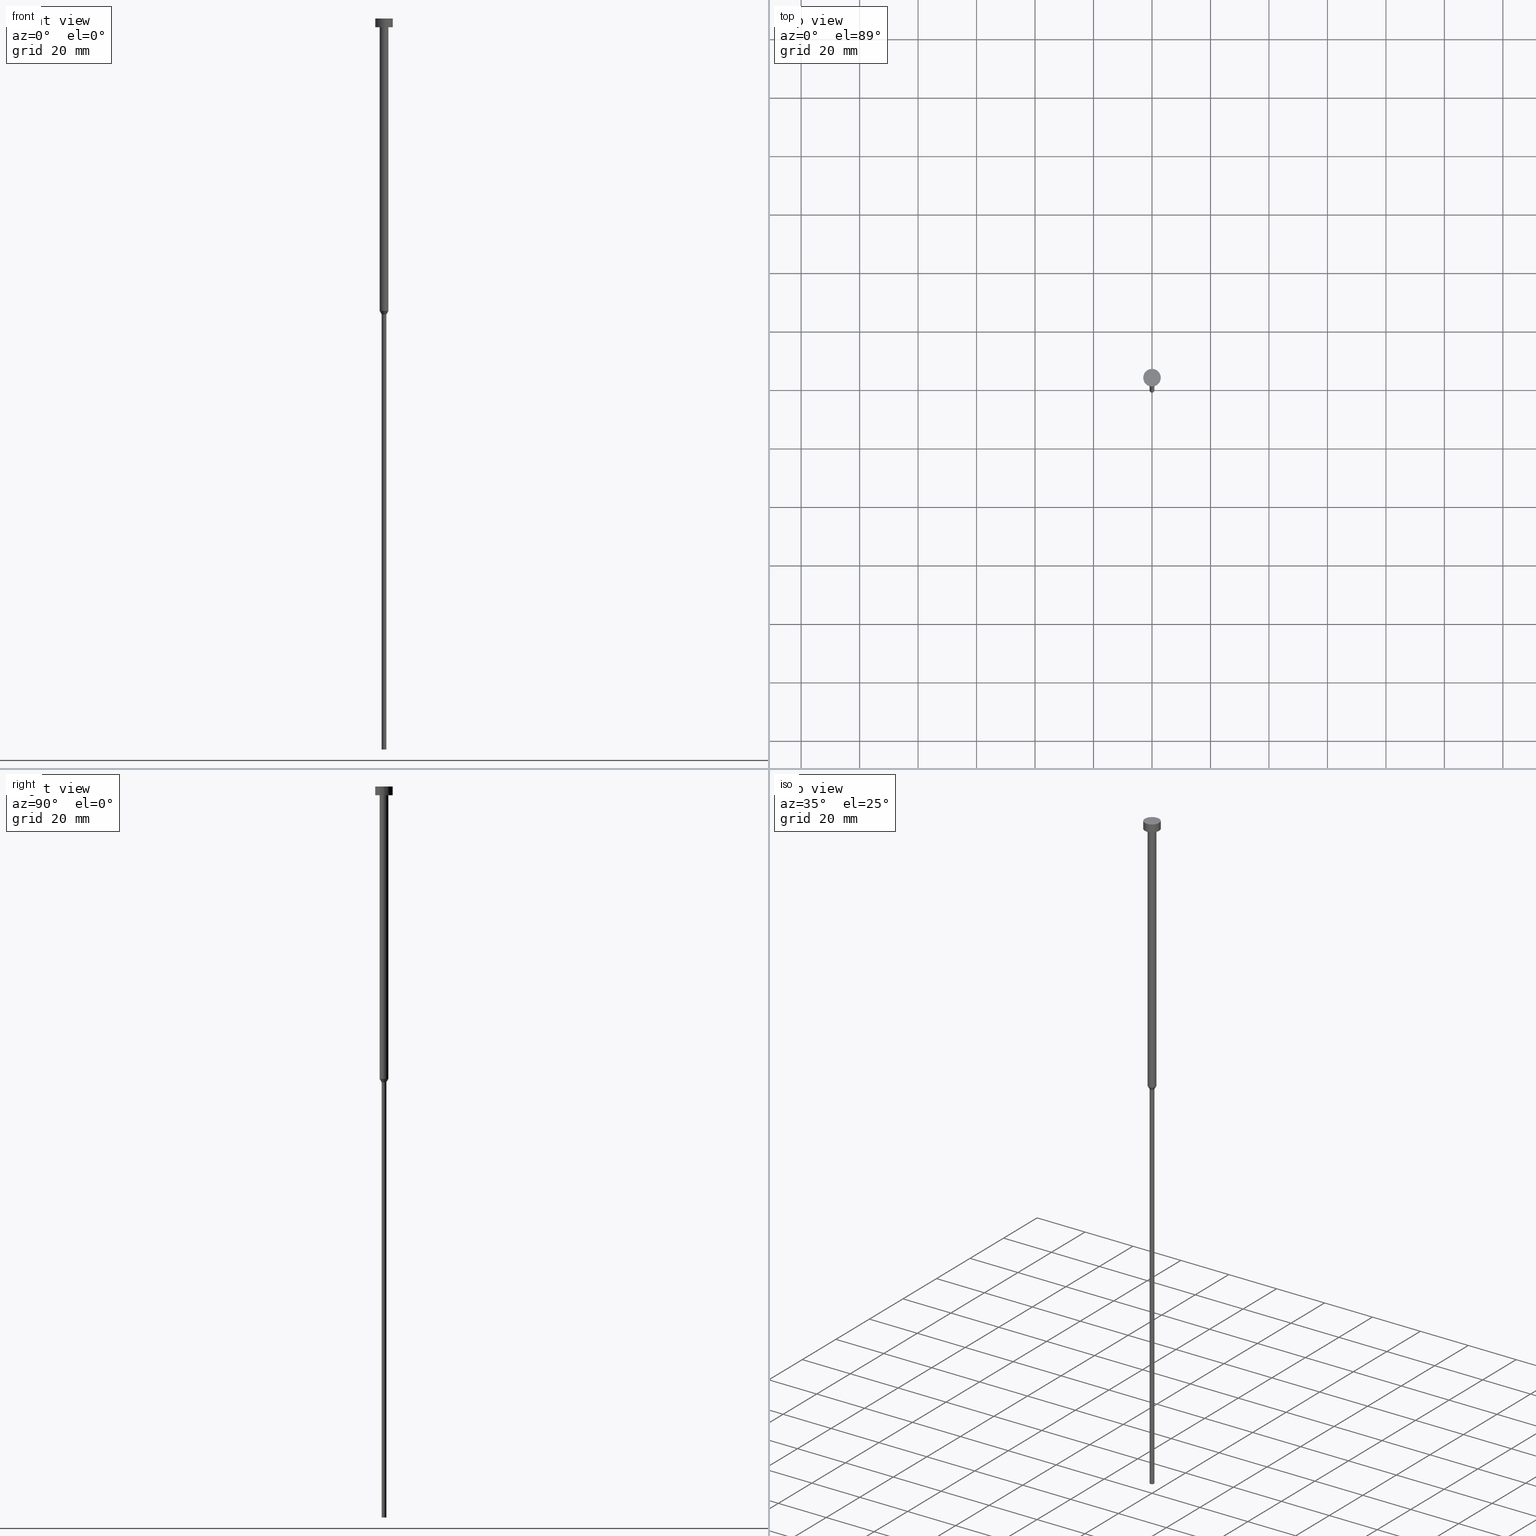
[diagram: canonical four-view strip — front | top / right | iso, engineering-drawing reading convention]
A machine part, canonical four-view strip (front | top / right | iso — engineering-drawing reading convention). The complete STEP part file that produces these views, byte-faithful:
ISO-10303-21;
HEADER;
FILE_DESCRIPTION (( 'STEP AP203' ),
    '1' );
FILE_NAME ('6bb0.STEP',
    '2023-02-13T09:02:02',
    ( '' ),
    ( '' ),
    'SwSTEP 2.0',
    'SolidWorks 2019',
    '' );
FILE_SCHEMA (( 'CONFIG_CONTROL_DESIGN' ));
ENDSEC;

DATA;
#1 = VECTOR ( 'NONE', #136, 1000.000000000000000 ) ;
#2 = DIRECTION ( 'NONE',  ( -0.000000000000000000, -0.000000000000000000, 1.000000000000000000 ) ) ;
#3 = CYLINDRICAL_SURFACE ( 'NONE', #149, 3.000000000000000000 ) ;
#4 = LINE ( 'NONE', #160, #329 ) ;
#5 = EDGE_CURVE ( 'NONE', #168, #71, #169, .T. ) ;
#6 = APPLICATION_CONTEXT ( 'configuration controlled 3d designs of mechanical parts and assemblies' ) ;
#7 = ADVANCED_FACE ( 'NONE', ( #324 ), #322, .T. ) ;
#8 = DIRECTION ( 'NONE',  ( -0.000000000000000000, -0.000000000000000000, 1.000000000000000000 ) ) ;
#9 = CC_DESIGN_PERSON_AND_ORGANIZATION_ASSIGNMENT ( #181, #46, ( #84 ) ) ;
#10 = CIRCLE ( 'NONE', #79, 3.000000000000000000 ) ;
#11 = DIRECTION ( 'NONE',  ( -0.000000000000000000, -0.000000000000000000, 1.000000000000000000 ) ) ;
#12 = APPLICATION_PROTOCOL_DEFINITION ( 'international standard', 'config_control_design', 1994, #6 ) ;
#13 = LINE ( 'NONE', #115, #166 ) ;
#14 = PLANE ( 'NONE',  #305 ) ;
#15 = FACE_OUTER_BOUND ( 'NONE', #226, .T. ) ;
#16 = FACE_OUTER_BOUND ( 'NONE', #144, .T. ) ;
#17 = DESIGN_CONTEXT ( 'detailed design', #145, 'design' ) ;
#18 = VERTEX_POINT ( 'NONE', #52 ) ;
#19 = DIRECTION ( 'NONE',  ( 1.000000000000000000, 0.000000000000000000, 0.000000000000000000 ) ) ;
#20 = ORIENTED_EDGE ( 'NONE', *, *, #5, .F. ) ;
#21 = CARTESIAN_POINT ( 'NONE',  ( -3.000000000000000000, 3.673940397442059868E-16, -3.000000000000000888 ) ) ;
#22 = ORIENTED_EDGE ( 'NONE', *, *, #237, .T. ) ;
#23 = DATE_AND_TIME ( #352, #38 ) ;
#24 = APPROVAL_ROLE ( '' ) ;
#25 = FACE_OUTER_BOUND ( 'NONE', #117, .T. ) ;
#26 = ORIENTED_EDGE ( 'NONE', *, *, #94, .T. ) ;
#27 =( GEOMETRIC_REPRESENTATION_CONTEXT ( 3 ) GLOBAL_UNCERTAINTY_ASSIGNED_CONTEXT ( ( #345 ) ) GLOBAL_UNIT_ASSIGNED_CONTEXT ( ( #290, #120, #59 ) ) REPRESENTATION_CONTEXT ( 'NONE', 'WORKASPACE' ) );
#28 = DIRECTION ( 'NONE',  ( -0.000000000000000000, -0.000000000000000000, 1.000000000000000000 ) ) ;
#29 = CARTESIAN_POINT ( 'NONE',  ( 0.000000000000000000, 0.000000000000000000, -3.673940397442059868E-16 ) ) ;
#30 = FACE_OUTER_BOUND ( 'NONE', #341, .T. ) ;
#31 = CONICAL_SURFACE ( 'NONE', #128, 1.500000000000000000, 0.5235987755983007030 ) ;
#32 = DIRECTION ( 'NONE',  ( 1.000000000000000000, 0.000000000000000000, 0.000000000000000000 ) ) ;
#33 = CARTESIAN_POINT ( 'NONE',  ( 0.8000000000000000444, 0.000000000000000000, 0.000000000000000000 ) ) ;
#34 = CARTESIAN_POINT ( 'NONE',  ( 0.000000000000000000, 0.000000000000000000, -3.000000000000000888 ) ) ;
#35 = CIRCLE ( 'NONE', #219, 0.7999999999999999334 ) ;
#36 = CYLINDRICAL_SURFACE ( 'NONE', #108, 1.500000000000000000 ) ;
#37 = SECURITY_CLASSIFICATION_LEVEL ( 'unclassified' ) ;
#38 = LOCAL_TIME ( 10, 2, 2.000000000000000000, #234 ) ;
#39 = ORIENTED_EDGE ( 'NONE', *, *, #339, .T. ) ;
#40 = PERSON_AND_ORGANIZATION_ROLE ( 'classification_officer' ) ;
#41 = ORIENTED_EDGE ( 'NONE', *, *, #307, .T. ) ;
#42 = FACE_OUTER_BOUND ( 'NONE', #229, .T. ) ;
#43 = CARTESIAN_POINT ( 'NONE',  ( 1.500000000000000000, 0.000000000000000000, -100.0000000000000000 ) ) ;
#44 = EDGE_CURVE ( 'NONE', #18, #147, #303, .T. ) ;
#45 = ADVANCED_FACE ( 'NONE', ( #214 ), #244, .T. ) ;
#46 = PERSON_AND_ORGANIZATION_ROLE ( 'creator' ) ;
#47 = APPROVAL_STATUS ( 'not_yet_approved' ) ;
#48 = DIRECTION ( 'NONE',  ( -0.000000000000000000, -0.000000000000000000, 1.000000000000000000 ) ) ;
#49 = ORIENTED_EDGE ( 'NONE', *, *, #161, .T. ) ;
#50 = ADVANCED_FACE ( 'NONE', ( #30 ), #182, .T. ) ;
#51 = DIRECTION ( 'NONE',  ( 1.000000000000000000, 0.000000000000000000, 0.000000000000000000 ) ) ;
#52 = CARTESIAN_POINT ( 'NONE',  ( 3.000000000000000000, 0.000000000000000000, -3.673940397442059868E-16 ) ) ;
#53 = ORIENTED_EDGE ( 'NONE', *, *, #72, .F. ) ;
#54 = AXIS2_PLACEMENT_3D ( 'NONE', #301, #165, #140 ) ;
#55 = DIRECTION ( 'NONE',  ( 1.000000000000000000, 0.000000000000000000, 0.000000000000000000 ) ) ;
#56 = ADVANCED_FACE ( 'NONE', ( #25 ), #235, .T. ) ;
#57 = CIRCLE ( 'NONE', #200, 1.500000000000000000 ) ;
#58 = APPROVAL_STATUS ( 'not_yet_approved' ) ;
#59 =( NAMED_UNIT ( * ) SI_UNIT ( $, .STERADIAN. ) SOLID_ANGLE_UNIT ( ) );
#60 = CARTESIAN_POINT ( 'NONE',  ( -0.8000000000000002665, 9.797174393178828616E-17, -101.2124355652982075 ) ) ;
#61 = EDGE_CURVE ( 'NONE', #180, #240, #261, .T. ) ;
#62 = ORIENTED_EDGE ( 'NONE', *, *, #237, .F. ) ;
#63 = ADVANCED_FACE ( 'NONE', ( #190, #137 ), #14, .T. ) ;
#64 = DIRECTION ( 'NONE',  ( 1.000000000000000000, 0.000000000000000000, 0.000000000000000000 ) ) ;
#65 = CARTESIAN_POINT ( 'NONE',  ( -0.7999999999999999334, 9.797174393178826150E-17, -250.0000000000000000 ) ) ;
#66 = PERSON_AND_ORGANIZATION ( #274, #103 ) ;
#67 = AXIS2_PLACEMENT_3D ( 'NONE', #148, #259, #19 ) ;
#68 = CC_DESIGN_SECURITY_CLASSIFICATION ( #186, ( #236 ) ) ;
#69 = CARTESIAN_POINT ( 'NONE',  ( 0.000000000000000000, 0.000000000000000000, -3.000000000000000888 ) ) ;
#70 = CALENDAR_DATE ( 2023, 13, 2 ) ;
#71 = VERTEX_POINT ( 'NONE', #83 ) ;
#72 = EDGE_CURVE ( 'NONE', #348, #318, #93, .T. ) ;
#73 = PERSON_AND_ORGANIZATION ( #274, #103 ) ;
#74 = AXIS2_PLACEMENT_3D ( 'NONE', #267, #78, #294 ) ;
#75 = DATE_AND_TIME ( #70, #195 ) ;
#76 = ORIENTED_EDGE ( 'NONE', *, *, #282, .T. ) ;
#77 = EDGE_LOOP ( 'NONE', ( #41, #130, #315, #104 ) ) ;
#78 = DIRECTION ( 'NONE',  ( -0.000000000000000000, -0.000000000000000000, 1.000000000000000000 ) ) ;
#79 = AXIS2_PLACEMENT_3D ( 'NONE', #310, #118, #176 ) ;
#80 = DIRECTION ( 'NONE',  ( -1.000000000000000000, 0.000000000000000000, -0.000000000000000000 ) ) ;
#81 = AXIS2_PLACEMENT_3D ( 'NONE', #253, #95, #122 ) ;
#82 = ORIENTED_EDGE ( 'NONE', *, *, #332, .T. ) ;
#83 = CARTESIAN_POINT ( 'NONE',  ( 0.7999999999999999334, 0.000000000000000000, -250.0000000000000000 ) ) ;
#84 = PRODUCT_DEFINITION ( 'NEZN�M�', '', #236, #17 ) ;
#85 = DIRECTION ( 'NONE',  ( -0.000000000000000000, -0.000000000000000000, 1.000000000000000000 ) ) ;
#86 = AXIS2_PLACEMENT_3D ( 'NONE', #221, #85, #247 ) ;
#87 = LINE ( 'NONE', #191, #280 ) ;
#88 = CARTESIAN_POINT ( 'NONE',  ( 1.500000000000000000, 0.000000000000000000, 0.000000000000000000 ) ) ;
#89 = DIRECTION ( 'NONE',  ( 0.5000000000000015543, 0.000000000000000000, 0.8660254037844377084 ) ) ;
#90 = LINE ( 'NONE', #33, #1 ) ;
#91 = PERSON_AND_ORGANIZATION_ROLE ( 'design_owner' ) ;
#92 = FACE_OUTER_BOUND ( 'NONE', #77, .T. ) ;
#93 = CIRCLE ( 'NONE', #86, 0.8000000000000001554 ) ;
#94 = EDGE_CURVE ( 'NONE', #240, #286, #325, .T. ) ;
#95 = DIRECTION ( 'NONE',  ( -0.000000000000000000, -0.000000000000000000, 1.000000000000000000 ) ) ;
#96 = COORDINATED_UNIVERSAL_TIME_OFFSET ( 1, 0, .AHEAD. ) ;
#97 = CC_DESIGN_APPROVAL ( #184, ( #236 ) ) ;
#98 = LOCAL_TIME ( 10, 2, 2.000000000000000000, #336 ) ;
#99 = EDGE_LOOP ( 'NONE', ( #293, #109, #260, #53 ) ) ;
#100 = CARTESIAN_POINT ( 'NONE',  ( -1.500000000000000000, 1.836970198721029934E-16, 0.000000000000000000 ) ) ;
#101 = ORIENTED_EDGE ( 'NONE', *, *, #110, .F. ) ;
#102 = EDGE_CURVE ( 'NONE', #71, #168, #35, .T. ) ;
#103 = ORGANIZATION ( 'NEUR�EN�', 'NEUR�EN�', '' ) ;
#104 = ORIENTED_EDGE ( 'NONE', *, *, #105, .F. ) ;
#105 = EDGE_CURVE ( 'NONE', #292, #18, #4, .T. ) ;
#106 = ORIENTED_EDGE ( 'NONE', *, *, #282, .F. ) ;
#107 = CARTESIAN_POINT ( 'NONE',  ( 0.000000000000000000, 0.000000000000000000, -250.0000000000000000 ) ) ;
#108 = AXIS2_PLACEMENT_3D ( 'NONE', #139, #142, #32 ) ;
#109 = ORIENTED_EDGE ( 'NONE', *, *, #5, .T. ) ;
#110 = EDGE_CURVE ( 'NONE', #71, #318, #90, .T. ) ;
#111 = EDGE_CURVE ( 'NONE', #240, #180, #138, .T. ) ;
#112 = VECTOR ( 'NONE', #308, 1000.000000000000000 ) ;
#113 = DIRECTION ( 'NONE',  ( -0.000000000000000000, -0.000000000000000000, 1.000000000000000000 ) ) ;
#114 = DIRECTION ( 'NONE',  ( 1.000000000000000000, 0.000000000000000000, 0.000000000000000000 ) ) ;
#115 = CARTESIAN_POINT ( 'NONE',  ( -3.000000000000000000, 3.673940397442059868E-16, 0.000000000000000000 ) ) ;
#116 = AXIS2_PLACEMENT_3D ( 'NONE', #157, #28, #131 ) ;
#117 = EDGE_LOOP ( 'NONE', ( #123, #317, #264, #225 ) ) ;
#118 = DIRECTION ( 'NONE',  ( -0.000000000000000000, -0.000000000000000000, 1.000000000000000000 ) ) ;
#119 = ORIENTED_EDGE ( 'NONE', *, *, #283, .F. ) ;
#120 =( NAMED_UNIT ( * ) PLANE_ANGLE_UNIT ( ) SI_UNIT ( $, .RADIAN. ) );
#121 = CIRCLE ( 'NONE', #208, 3.000000000000000000 ) ;
#122 = DIRECTION ( 'NONE',  ( 1.000000000000000000, 0.000000000000000000, 0.000000000000000000 ) ) ;
#123 = ORIENTED_EDGE ( 'NONE', *, *, #111, .T. ) ;
#124 = DIRECTION ( 'NONE',  ( -0.000000000000000000, -0.000000000000000000, 1.000000000000000000 ) ) ;
#125 = CALENDAR_DATE ( 2023, 13, 2 ) ;
#126 = ORIENTED_EDGE ( 'NONE', *, *, #203, .T. ) ;
#127 = APPROVAL_DATE_TIME ( #287, #319 ) ;
#128 = AXIS2_PLACEMENT_3D ( 'NONE', #198, #202, #228 ) ;
#129 = DATE_AND_TIME ( #263, #98 ) ;
#130 = ORIENTED_EDGE ( 'NONE', *, *, #313, .T. ) ;
#131 = DIRECTION ( 'NONE',  ( 1.000000000000000000, 0.000000000000000000, 0.000000000000000000 ) ) ;
#132 = CC_DESIGN_DATE_AND_TIME_ASSIGNMENT ( #75, #199, ( #186 ) ) ;
#133 = DIRECTION ( 'NONE',  ( 1.000000000000000000, 0.000000000000000000, 0.000000000000000000 ) ) ;
#134 = CIRCLE ( 'NONE', #216, 0.8000000000000001554 ) ;
#135 = CARTESIAN_POINT ( 'NONE',  ( 0.000000000000000000, 0.000000000000000000, 0.000000000000000000 ) ) ;
#136 = DIRECTION ( 'NONE',  ( -0.000000000000000000, -0.000000000000000000, 1.000000000000000000 ) ) ;
#137 = FACE_OUTER_BOUND ( 'NONE', #351, .T. ) ;
#138 = CIRCLE ( 'NONE', #323, 1.500000000000000000 ) ;
#139 = CARTESIAN_POINT ( 'NONE',  ( 0.000000000000000000, 0.000000000000000000, 0.000000000000000000 ) ) ;
#140 = DIRECTION ( 'NONE',  ( 1.000000000000000000, 0.000000000000000000, 0.000000000000000000 ) ) ;
#141 = CARTESIAN_POINT ( 'NONE',  ( 3.000000000000000000, 0.000000000000000000, -3.000000000000000888 ) ) ;
#142 = DIRECTION ( 'NONE',  ( -0.000000000000000000, -0.000000000000000000, 1.000000000000000000 ) ) ;
#143 = LOCAL_TIME ( 10, 2, 2.000000000000000000, #291 ) ;
#144 = EDGE_LOOP ( 'NONE', ( #158, #82 ) ) ;
#145 = APPLICATION_CONTEXT ( 'configuration controlled 3d designs of mechanical parts and assemblies' ) ;
#146 = MANIFOLD_SOLID_BREP ( 'Rotovat1', #215 ) ;
#147 = VERTEX_POINT ( 'NONE', #163 ) ;
#148 = CARTESIAN_POINT ( 'NONE',  ( 0.000000000000000000, 0.000000000000000000, 0.000000000000000000 ) ) ;
#149 = AXIS2_PLACEMENT_3D ( 'NONE', #306, #232, #316 ) ;
#150 = APPROVAL_ROLE ( '' ) ;
#151 = COORDINATED_UNIVERSAL_TIME_OFFSET ( 1, 0, .AHEAD. ) ;
#152 = ORIENTED_EDGE ( 'NONE', *, *, #102, .T. ) ;
#153 = ADVANCED_FACE ( 'NONE', ( #277 ), #193, .T. ) ;
#154 = APPROVAL_ROLE ( '' ) ;
#155 = ORIENTED_EDGE ( 'NONE', *, *, #111, .F. ) ;
#156 = AXIS2_PLACEMENT_3D ( 'NONE', #295, #162, #114 ) ;
#157 = CARTESIAN_POINT ( 'NONE',  ( 0.000000000000000000, 0.000000000000000000, 0.000000000000000000 ) ) ;
#158 = ORIENTED_EDGE ( 'NONE', *, *, #44, .T. ) ;
#159 = AXIS2_PLACEMENT_3D ( 'NONE', #314, #173, #285 ) ;
#160 = CARTESIAN_POINT ( 'NONE',  ( 3.000000000000000000, 0.000000000000000000, 0.000000000000000000 ) ) ;
#161 = EDGE_CURVE ( 'NONE', #286, #353, #189, .T. ) ;
#162 = DIRECTION ( 'NONE',  ( 0.000000000000000000, 0.000000000000000000, 1.000000000000000000 ) ) ;
#163 = CARTESIAN_POINT ( 'NONE',  ( -3.000000000000000000, 3.673940397442059868E-16, -3.673940397442059868E-16 ) ) ;
#164 = CC_DESIGN_PERSON_AND_ORGANIZATION_ASSIGNMENT ( #210, #197, ( #236 ) ) ;
#165 = DIRECTION ( 'NONE',  ( -0.000000000000000000, -0.000000000000000000, 1.000000000000000000 ) ) ;
#166 = VECTOR ( 'NONE', #224, 1000.000000000000000 ) ;
#167 = DIRECTION ( 'NONE',  ( 1.000000000000000000, 0.000000000000000000, 0.000000000000000000 ) ) ;
#168 = VERTEX_POINT ( 'NONE', #65 ) ;
#169 = CIRCLE ( 'NONE', #207, 0.7999999999999999334 ) ;
#170 = ADVANCED_FACE ( 'NONE', ( #15 ), #31, .T. ) ;
#171 = CARTESIAN_POINT ( 'NONE',  ( -1.500000000000000000, 1.836970198721029934E-16, -100.0000000000000000 ) ) ;
#172 = LINE ( 'NONE', #175, #112 ) ;
#173 = DIRECTION ( 'NONE',  ( 0.000000000000000000, -0.000000000000000000, 1.000000000000000000 ) ) ;
#174 = ORIENTED_EDGE ( 'NONE', *, *, #313, .F. ) ;
#175 = CARTESIAN_POINT ( 'NONE',  ( -0.8000000000000000444, 9.797174393178826150E-17, 0.000000000000000000 ) ) ;
#176 = DIRECTION ( 'NONE',  ( 1.000000000000000000, 0.000000000000000000, 0.000000000000000000 ) ) ;
#177 = CARTESIAN_POINT ( 'NONE',  ( -1.500000000000000000, 1.836970198721029934E-16, -3.000000000000000888 ) ) ;
#178 = APPROVAL_STATUS ( 'not_yet_approved' ) ;
#179 = EDGE_CURVE ( 'NONE', #266, #292, #10, .T. ) ;
#180 = VERTEX_POINT ( 'NONE', #171 ) ;
#181 = PERSON_AND_ORGANIZATION ( #274, #103 ) ;
#182 = CYLINDRICAL_SURFACE ( 'NONE', #279, 3.000000000000000000 ) ;
#183 = DATE_AND_TIME ( #320, #311 ) ;
#184 = APPROVAL ( #178, 'NEUR�EN�' ) ;
#185 = ORIENTED_EDGE ( 'NONE', *, *, #332, .F. ) ;
#186 = SECURITY_CLASSIFICATION ( '', '', #37 ) ;
#187 = ORIENTED_EDGE ( 'NONE', *, *, #307, .F. ) ;
#188 = DIRECTION ( 'NONE',  ( 0.000000000000000000, 0.000000000000000000, -1.000000000000000000 ) ) ;
#189 = CIRCLE ( 'NONE', #81, 1.500000000000000000 ) ;
#190 = FACE_BOUND ( 'NONE', #209, .T. ) ;
#191 = CARTESIAN_POINT ( 'NONE',  ( 1.500000000000000000, 0.000000000000000000, -100.0000000000000000 ) ) ;
#192 = DIRECTION ( 'NONE',  ( 1.000000000000000000, 0.000000000000000000, 0.000000000000000000 ) ) ;
#193 = CYLINDRICAL_SURFACE ( 'NONE', #54, 0.8000000000000000444 ) ;
#194 = APPLICATION_PROTOCOL_DEFINITION ( 'international standard', 'config_control_design', 1994, #145 ) ;
#195 = LOCAL_TIME ( 10, 2, 2.000000000000000000, #96 ) ;
#196 = CYLINDRICAL_SURFACE ( 'NONE', #67, 0.8000000000000000444 ) ;
#197 = PERSON_AND_ORGANIZATION_ROLE ( 'creator' ) ;
#198 = CARTESIAN_POINT ( 'NONE',  ( 0.000000000000000000, 0.000000000000000000, -100.0000000000000000 ) ) ;
#199 = DATE_TIME_ROLE ( 'classification_date' ) ;
#200 = AXIS2_PLACEMENT_3D ( 'NONE', #69, #284, #257 ) ;
#201 = ORIENTED_EDGE ( 'NONE', *, *, #283, .T. ) ;
#202 = DIRECTION ( 'NONE',  ( -0.000000000000000000, -0.000000000000000000, 1.000000000000000000 ) ) ;
#203 = EDGE_CURVE ( 'NONE', #353, #286, #57, .T. ) ;
#204 = DATE_TIME_ROLE ( 'creation_date' ) ;
#205 = ADVANCED_FACE ( 'NONE', ( #16 ), #342, .T. ) ;
#206 = CC_DESIGN_PERSON_AND_ORGANIZATION_ASSIGNMENT ( #331, #91, ( #249 ) ) ;
#207 = AXIS2_PLACEMENT_3D ( 'NONE', #107, #2, #245 ) ;
#208 = AXIS2_PLACEMENT_3D ( 'NONE', #34, #281, #254 ) ;
#209 = EDGE_LOOP ( 'NONE', ( #49, #126 ) ) ;
#210 = PERSON_AND_ORGANIZATION ( #274, #103 ) ;
#211 = CARTESIAN_POINT ( 'NONE',  ( 0.000000000000000000, 0.000000000000000000, -250.0000000000000000 ) ) ;
#212 = SHAPE_DEFINITION_REPRESENTATION ( #243, #340 ) ;
#213 = PRODUCT_RELATED_PRODUCT_CATEGORY ( 'detail', '', ( #249 ) ) ;
#214 = FACE_OUTER_BOUND ( 'NONE', #296, .T. ) ;
#215 = CLOSED_SHELL ( 'NONE', ( #326, #56, #45, #268, #7, #153, #170, #276, #63, #50, #205 ) ) ;
#216 = AXIS2_PLACEMENT_3D ( 'NONE', #328, #330, #167 ) ;
#217 = ORIENTED_EDGE ( 'NONE', *, *, #102, .F. ) ;
#218 = AXIS2_PLACEMENT_3D ( 'NONE', #211, #188, #80 ) ;
#219 = AXIS2_PLACEMENT_3D ( 'NONE', #300, #11, #55 ) ;
#220 = DIRECTION ( 'NONE',  ( 1.000000000000000000, 0.000000000000000000, 0.000000000000000000 ) ) ;
#221 = CARTESIAN_POINT ( 'NONE',  ( 0.000000000000000000, 0.000000000000000000, -101.2124355652982075 ) ) ;
#222 = MECHANICAL_CONTEXT ( 'NONE', #6, 'mechanical' ) ;
#223 = CARTESIAN_POINT ( 'NONE',  ( 0.000000000000000000, 0.000000000000000000, -100.0000000000000000 ) ) ;
#224 = DIRECTION ( 'NONE',  ( -0.000000000000000000, -0.000000000000000000, 1.000000000000000000 ) ) ;
#225 = ORIENTED_EDGE ( 'NONE', *, *, #94, .F. ) ;
#226 = EDGE_LOOP ( 'NONE', ( #62, #346, #201, #256 ) ) ;
#227 = CC_DESIGN_DATE_AND_TIME_ASSIGNMENT ( #23, #204, ( #84 ) ) ;
#228 = DIRECTION ( 'NONE',  ( 1.000000000000000000, 0.000000000000000000, 0.000000000000000000 ) ) ;
#229 = EDGE_LOOP ( 'NONE', ( #152, #39, #106, #101 ) ) ;
#230 = VECTOR ( 'NONE', #309, 1000.000000000000227 ) ;
#231 = LINE ( 'NONE', #233, #230 ) ;
#232 = DIRECTION ( 'NONE',  ( -0.000000000000000000, -0.000000000000000000, 1.000000000000000000 ) ) ;
#233 = CARTESIAN_POINT ( 'NONE',  ( -1.500000000000000000, 1.836970198721029934E-16, -100.0000000000000000 ) ) ;
#234 = COORDINATED_UNIVERSAL_TIME_OFFSET ( 1, 0, .AHEAD. ) ;
#235 = CYLINDRICAL_SURFACE ( 'NONE', #116, 1.500000000000000000 ) ;
#236 = PRODUCT_DEFINITION_FORMATION_WITH_SPECIFIED_SOURCE ( 'LIBOVOLN�', '', #249, .NOT_KNOWN. ) ;
#237 = EDGE_CURVE ( 'NONE', #348, #180, #231, .T. ) ;
#238 = APPROVAL_DATE_TIME ( #129, #246 ) ;
#239 = ORIENTED_EDGE ( 'NONE', *, *, #270, .F. ) ;
#240 = VERTEX_POINT ( 'NONE', #43 ) ;
#241 = CC_DESIGN_PERSON_AND_ORGANIZATION_ASSIGNMENT ( #333, #258, ( #236 ) ) ;
#242 = ORIENTED_EDGE ( 'NONE', *, *, #105, .T. ) ;
#243 = PRODUCT_DEFINITION_SHAPE ( 'NONE', 'NONE',  #84 ) ;
#244 = CONICAL_SURFACE ( 'NONE', #74, 1.500000000000000000, 0.5235987755983007030 ) ;
#245 = DIRECTION ( 'NONE',  ( 1.000000000000000000, 0.000000000000000000, 0.000000000000000000 ) ) ;
#246 = APPROVAL ( #47, 'NEUR�EN�' ) ;
#247 = DIRECTION ( 'NONE',  ( 1.000000000000000000, 0.000000000000000000, 0.000000000000000000 ) ) ;
#248 = DIRECTION ( 'NONE',  ( -0.000000000000000000, -0.000000000000000000, 1.000000000000000000 ) ) ;
#249 = PRODUCT ( '6bb0', '6bb0', '', ( #222 ) ) ;
#250 = APPROVAL_PERSON_ORGANIZATION ( #73, #184, #154 ) ;
#251 = DIRECTION ( 'NONE',  ( -1.000000000000000000, 0.000000000000000000, -0.000000000000000000 ) ) ;
#252 = CC_DESIGN_APPROVAL ( #246, ( #186 ) ) ;
#253 = CARTESIAN_POINT ( 'NONE',  ( 0.000000000000000000, 0.000000000000000000, -3.000000000000000888 ) ) ;
#254 = DIRECTION ( 'NONE',  ( 1.000000000000000000, 0.000000000000000000, 0.000000000000000000 ) ) ;
#255 = CIRCLE ( 'NONE', #343, 3.000000000000000000 ) ;
#256 = ORIENTED_EDGE ( 'NONE', *, *, #61, .F. ) ;
#257 = DIRECTION ( 'NONE',  ( 1.000000000000000000, 0.000000000000000000, 0.000000000000000000 ) ) ;
#258 = PERSON_AND_ORGANIZATION_ROLE ( 'design_supplier' ) ;
#259 = DIRECTION ( 'NONE',  ( -0.000000000000000000, -0.000000000000000000, 1.000000000000000000 ) ) ;
#260 = ORIENTED_EDGE ( 'NONE', *, *, #110, .T. ) ;
#261 = CIRCLE ( 'NONE', #269, 1.500000000000000000 ) ;
#262 = ORIENTED_EDGE ( 'NONE', *, *, #179, .T. ) ;
#263 = CALENDAR_DATE ( 2023, 13, 2 ) ;
#264 = ORIENTED_EDGE ( 'NONE', *, *, #161, .F. ) ;
#265 = VECTOR ( 'NONE', #302, 1000.000000000000000 ) ;
#266 = VERTEX_POINT ( 'NONE', #21 ) ;
#267 = CARTESIAN_POINT ( 'NONE',  ( 0.000000000000000000, 0.000000000000000000, -100.0000000000000000 ) ) ;
#268 = ADVANCED_FACE ( 'NONE', ( #42 ), #196, .T. ) ;
#269 = AXIS2_PLACEMENT_3D ( 'NONE', #271, #8, #220 ) ;
#270 = EDGE_CURVE ( 'NONE', #180, #353, #344, .T. ) ;
#271 = CARTESIAN_POINT ( 'NONE',  ( 0.000000000000000000, 0.000000000000000000, -100.0000000000000000 ) ) ;
#272 = FACE_OUTER_BOUND ( 'NONE', #337, .T. ) ;
#273 = DIRECTION ( 'NONE',  ( -0.000000000000000000, -0.000000000000000000, 1.000000000000000000 ) ) ;
#274 = PERSON ( 'NEUR�EN�', 'NEUR�EN�', 'NEUR�EN�', ('NEUR�EN�'), ('NEUR�EN�'), ('NEUR�EN�') ) ;
#275 = CARTESIAN_POINT ( 'NONE',  ( 1.500000000000000000, 0.000000000000000000, -3.000000000000000888 ) ) ;
#276 = ADVANCED_FACE ( 'NONE', ( #272 ), #36, .T. ) ;
#277 = FACE_OUTER_BOUND ( 'NONE', #99, .T. ) ;
#278 = CARTESIAN_POINT ( 'NONE',  ( 0.8000000000000001554, 0.000000000000000000, -101.2124355652982075 ) ) ;
#279 = AXIS2_PLACEMENT_3D ( 'NONE', #135, #48, #51 ) ;
#280 = VECTOR ( 'NONE', #89, 1000.000000000000227 ) ;
#281 = DIRECTION ( 'NONE',  ( -0.000000000000000000, -0.000000000000000000, 1.000000000000000000 ) ) ;
#282 = EDGE_CURVE ( 'NONE', #318, #348, #134, .T. ) ;
#283 = EDGE_CURVE ( 'NONE', #318, #240, #87, .T. ) ;
#284 = DIRECTION ( 'NONE',  ( -0.000000000000000000, -0.000000000000000000, 1.000000000000000000 ) ) ;
#285 = DIRECTION ( 'NONE',  ( 1.000000000000000000, 0.000000000000000000, 0.000000000000000000 ) ) ;
#286 = VERTEX_POINT ( 'NONE', #275 ) ;
#287 = DATE_AND_TIME ( #125, #143 ) ;
#288 = PERSON_AND_ORGANIZATION ( #274, #103 ) ;
#289 = ORIENTED_EDGE ( 'NONE', *, *, #179, .F. ) ;
#290 =( LENGTH_UNIT ( ) NAMED_UNIT ( * ) SI_UNIT ( .MILLI., .METRE. ) );
#291 = COORDINATED_UNIVERSAL_TIME_OFFSET ( 1, 0, .AHEAD. ) ;
#292 = VERTEX_POINT ( 'NONE', #141 ) ;
#293 = ORIENTED_EDGE ( 'NONE', *, *, #339, .F. ) ;
#294 = DIRECTION ( 'NONE',  ( 1.000000000000000000, 0.000000000000000000, 0.000000000000000000 ) ) ;
#295 = CARTESIAN_POINT ( 'NONE',  ( 0.000000000000000000, 0.000000000000000000, 0.000000000000000000 ) ) ;
#296 = EDGE_LOOP ( 'NONE', ( #76, #22, #155, #119 ) ) ;
#297 = DIRECTION ( 'NONE',  ( -0.000000000000000000, -0.000000000000000000, 1.000000000000000000 ) ) ;
#298 = CARTESIAN_POINT ( 'NONE',  ( 0.000000000000000000, -3.000000000000000000, -3.000000000000000888 ) ) ;
#299 = APPROVAL_PERSON_ORGANIZATION ( #304, #319, #150 ) ;
#300 = CARTESIAN_POINT ( 'NONE',  ( 0.000000000000000000, 0.000000000000000000, -250.0000000000000000 ) ) ;
#301 = CARTESIAN_POINT ( 'NONE',  ( 0.000000000000000000, 0.000000000000000000, 0.000000000000000000 ) ) ;
#302 = DIRECTION ( 'NONE',  ( -0.000000000000000000, -0.000000000000000000, 1.000000000000000000 ) ) ;
#303 = CIRCLE ( 'NONE', #355, 3.000000000000000000 ) ;
#304 = PERSON_AND_ORGANIZATION ( #274, #103 ) ;
#305 = AXIS2_PLACEMENT_3D ( 'NONE', #298, #327, #251 ) ;
#306 = CARTESIAN_POINT ( 'NONE',  ( 0.000000000000000000, 0.000000000000000000, 0.000000000000000000 ) ) ;
#307 = EDGE_CURVE ( 'NONE', #292, #266, #121, .T. ) ;
#308 = DIRECTION ( 'NONE',  ( -0.000000000000000000, -0.000000000000000000, 1.000000000000000000 ) ) ;
#309 = DIRECTION ( 'NONE',  ( -0.5000000000000015543, 6.123233995736783292E-17, 0.8660254037844377084 ) ) ;
#310 = CARTESIAN_POINT ( 'NONE',  ( 0.000000000000000000, 0.000000000000000000, -3.000000000000000888 ) ) ;
#311 = LOCAL_TIME ( 10, 2, 2.000000000000000000, #151 ) ;
#312 = EDGE_LOOP ( 'NONE', ( #217, #20 ) ) ;
#313 = EDGE_CURVE ( 'NONE', #266, #147, #13, .T. ) ;
#314 = CARTESIAN_POINT ( 'NONE',  ( 0.000000000000000000, 0.000000000000000000, -1.836970198721029934E-16 ) ) ;
#315 = ORIENTED_EDGE ( 'NONE', *, *, #44, .F. ) ;
#316 = DIRECTION ( 'NONE',  ( 1.000000000000000000, 0.000000000000000000, 0.000000000000000000 ) ) ;
#317 = ORIENTED_EDGE ( 'NONE', *, *, #270, .T. ) ;
#318 = VERTEX_POINT ( 'NONE', #278 ) ;
#319 = APPROVAL ( #58, 'NEUR�EN�' ) ;
#320 = CALENDAR_DATE ( 2023, 13, 2 ) ;
#321 = ORIENTED_EDGE ( 'NONE', *, *, #203, .F. ) ;
#322 = PLANE ( 'NONE',  #218 ) ;
#323 = AXIS2_PLACEMENT_3D ( 'NONE', #223, #248, #192 ) ;
#324 = FACE_OUTER_BOUND ( 'NONE', #312, .T. ) ;
#325 = LINE ( 'NONE', #88, #334 ) ;
#326 = ADVANCED_FACE ( 'NONE', ( #92 ), #3, .T. ) ;
#327 = DIRECTION ( 'NONE',  ( 0.000000000000000000, 0.000000000000000000, -1.000000000000000000 ) ) ;
#328 = CARTESIAN_POINT ( 'NONE',  ( 0.000000000000000000, 0.000000000000000000, -101.2124355652982075 ) ) ;
#329 = VECTOR ( 'NONE', #273, 1000.000000000000000 ) ;
#330 = DIRECTION ( 'NONE',  ( -0.000000000000000000, -0.000000000000000000, 1.000000000000000000 ) ) ;
#331 = PERSON_AND_ORGANIZATION ( #274, #103 ) ;
#332 = EDGE_CURVE ( 'NONE', #147, #18, #255, .T. ) ;
#333 = PERSON_AND_ORGANIZATION ( #274, #103 ) ;
#334 = VECTOR ( 'NONE', #113, 1000.000000000000000 ) ;
#335 = APPROVAL_PERSON_ORGANIZATION ( #288, #246, #24 ) ;
#336 = COORDINATED_UNIVERSAL_TIME_OFFSET ( 1, 0, .AHEAD. ) ;
#337 = EDGE_LOOP ( 'NONE', ( #239, #354, #26, #321 ) ) ;
#338 = CARTESIAN_POINT ( 'NONE',  ( 0.000000000000000000, 0.000000000000000000, -3.673940397442059868E-16 ) ) ;
#339 = EDGE_CURVE ( 'NONE', #168, #348, #172, .T. ) ;
#340 = ADVANCED_BREP_SHAPE_REPRESENTATION ( '6bb0', ( #146, #156 ), #27 ) ;
#341 = EDGE_LOOP ( 'NONE', ( #174, #262, #242, #185 ) ) ;
#342 = PLANE ( 'NONE',  #159 ) ;
#343 = AXIS2_PLACEMENT_3D ( 'NONE', #338, #124, #64 ) ;
#344 = LINE ( 'NONE', #100, #265 ) ;
#345 = UNCERTAINTY_MEASURE_WITH_UNIT (LENGTH_MEASURE( 1.000000000000000082E-05 ), #290, 'distance_accuracy_value', 'NONE');
#346 = ORIENTED_EDGE ( 'NONE', *, *, #72, .T. ) ;
#347 = CC_DESIGN_PERSON_AND_ORGANIZATION_ASSIGNMENT ( #66, #40, ( #186 ) ) ;
#348 = VERTEX_POINT ( 'NONE', #60 ) ;
#349 = CC_DESIGN_APPROVAL ( #319, ( #84 ) ) ;
#350 = APPROVAL_DATE_TIME ( #183, #184 ) ;
#351 = EDGE_LOOP ( 'NONE', ( #187, #289 ) ) ;
#352 = CALENDAR_DATE ( 2023, 13, 2 ) ;
#353 = VERTEX_POINT ( 'NONE', #177 ) ;
#354 = ORIENTED_EDGE ( 'NONE', *, *, #61, .T. ) ;
#355 = AXIS2_PLACEMENT_3D ( 'NONE', #29, #297, #133 ) ;
ENDSEC;
END-ISO-10303-21;
